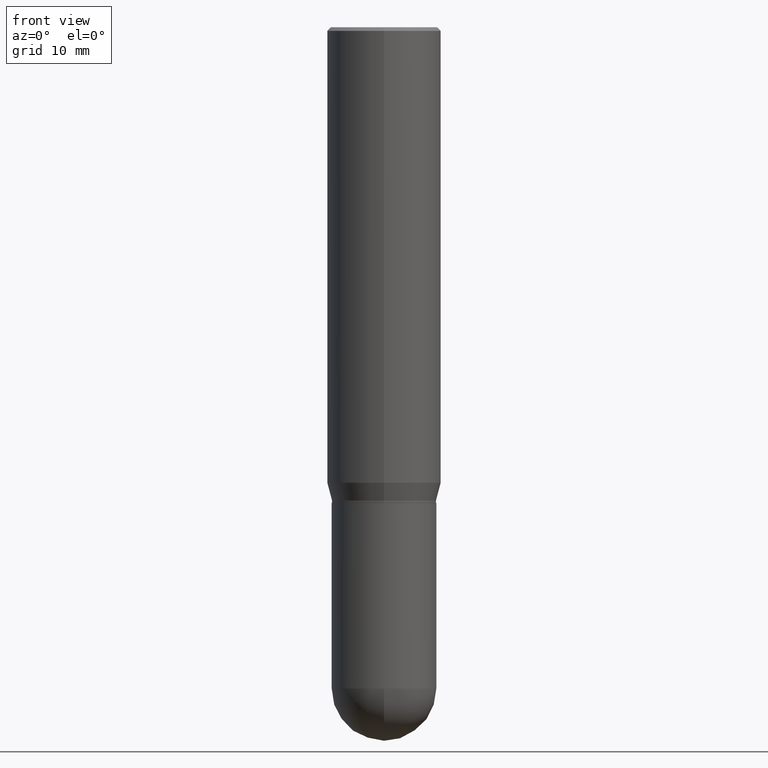
[diagram: clean part render]
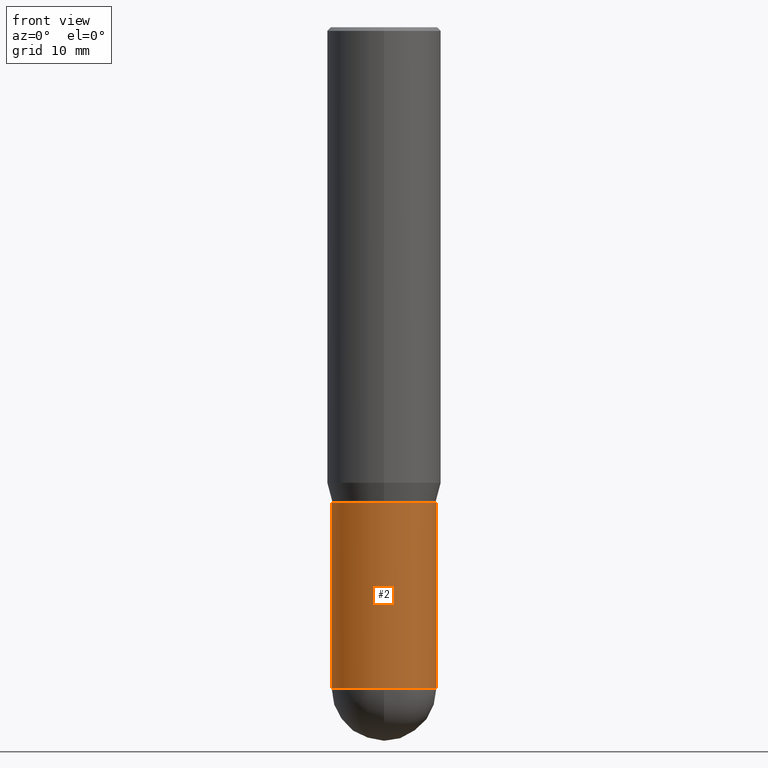
[diagram: same view with one face highlighted and labeled with its STEP entity id]
A machine part, front view. The second image highlights one B-rep face of the part: STEP entity #2.
In plain terms, the highlighted cylindrical surface (partial cylindrical patch) has radius 5.5004 mm, axis along (-0, 0, 1).
Its self-contained STEP definition (entity closure, byte-faithful):
#2 = ADVANCED_FACE ( 'NONE', ( #236 ), #439, .T. ) ;
#6 = DIRECTION ( 'NONE',  ( -2.445468806185136597E-29, 3.491481338843145583E-15, 1.000000000000000000 ) ) ;
#31 = VECTOR ( 'NONE', #456, 39.37007874015748143 ) ;
#32 = VERTEX_POINT ( 'NONE', #507 ) ;
#36 = CARTESIAN_POINT ( 'NONE',  ( 6.691414020924076964E-29, -9.553565813409554172E-15, -2.736249999999999183 ) ) ;
#37 = DIRECTION ( 'NONE',  ( -2.445468806185136597E-29, 3.491481338843145583E-15, 1.000000000000000000 ) ) ;
#45 = ORIENTED_EDGE ( 'NONE', *, *, #76, .T. ) ;
#54 = CARTESIAN_POINT ( 'NONE',  ( 0.2165500000000000480, -1.512160567852961414E-15, 1.055936080798610176E-29 ) ) ;
#57 = AXIS2_PLACEMENT_3D ( 'NONE', #487, #6, #96 ) ;
#76 = EDGE_CURVE ( 'NONE', #77, #239, #93, .T. ) ;
#77 = VERTEX_POINT ( 'NONE', #493 ) ;
#80 = VERTEX_POINT ( 'NONE', #99 ) ;
#83 = AXIS2_PLACEMENT_3D ( 'NONE', #36, #192, #185 ) ;
#85 = CIRCLE ( 'NONE', #57, 0.2165500000000000203 ) ;
#93 = LINE ( 'NONE', #54, #31 ) ;
#96 = DIRECTION ( 'NONE',  ( 1.000000000000000000, -6.982962677686264344E-15, 0.000000000000000000 ) ) ;
#99 = CARTESIAN_POINT ( 'NONE',  ( -0.2165500000000000203, -6.674593120172645055E-15, -1.968499999999999694 ) ) ;
#101 = AXIS2_PLACEMENT_3D ( 'NONE', #402, #37, #509 ) ;
#109 = AXIS2_PLACEMENT_3D ( 'NONE', #167, #134, #130 ) ;
#126 = LINE ( 'NONE', #136, #510 ) ;
#130 = DIRECTION ( 'NONE',  ( 1.000000000000000000, -6.982962677686263555E-15, 0.000000000000000000 ) ) ;
#133 = EDGE_CURVE ( 'NONE', #80, #239, #85, .T. ) ;
#134 = DIRECTION ( 'NONE',  ( -2.445468806185136597E-29, 3.491481338843145583E-15, 1.000000000000000000 ) ) ;
#136 = CARTESIAN_POINT ( 'NONE',  ( -0.2165500000000000480, 1.538680294288497294E-15, -1.065195393794700063E-29 ) ) ;
#167 = CARTESIAN_POINT ( 'NONE',  ( 6.691414020924076964E-29, -9.553565813409554172E-15, -2.736249999999999183 ) ) ;
#185 = DIRECTION ( 'NONE',  ( 1.000000000000000000, -6.982962677686263555E-15, 0.000000000000000000 ) ) ;
#192 = DIRECTION ( 'NONE',  ( -2.445468806185136597E-29, 3.491481338843145583E-15, 1.000000000000000000 ) ) ;
#202 = ORIENTED_EDGE ( 'NONE', *, *, #462, .T. ) ;
#236 = FACE_OUTER_BOUND ( 'NONE', #442, .T. ) ;
#239 = VERTEX_POINT ( 'NONE', #450 ) ;
#308 = CIRCLE ( 'NONE', #83, 0.2165500000000000480 ) ;
#325 = CARTESIAN_POINT ( 'NONE',  ( -1.538680294288430240E-15, -0.2165500000000096792, -2.736249999999998295 ) ) ;
#335 = EDGE_CURVE ( 'NONE', #505, #77, #413, .T. ) ;
#358 = EDGE_CURVE ( 'NONE', #32, #80, #126, .T. ) ;
#371 = ORIENTED_EDGE ( 'NONE', *, *, #335, .T. ) ;
#381 = DIRECTION ( 'NONE',  ( -2.445468806185136877E-29, 3.491481338843145188E-15, 1.000000000000000000 ) ) ;
#402 = CARTESIAN_POINT ( 'NONE',  ( 0.000000000000000000, 0.000000000000000000, 0.000000000000000000 ) ) ;
#413 = CIRCLE ( 'NONE', #109, 0.2165500000000000480 ) ;
#439 = CYLINDRICAL_SURFACE ( 'NONE', #101, 0.2165500000000000480 ) ;
#440 = ORIENTED_EDGE ( 'NONE', *, *, #133, .F. ) ;
#442 = EDGE_LOOP ( 'NONE', ( #460, #202, #371, #45, #440 ) ) ;
#450 = CARTESIAN_POINT ( 'NONE',  ( 0.2165500000000000203, -8.385141583365692530E-15, -1.968499999999999694 ) ) ;
#456 = DIRECTION ( 'NONE',  ( -2.445468806185136877E-29, 3.491481338843145188E-15, 1.000000000000000000 ) ) ;
#460 = ORIENTED_EDGE ( 'NONE', *, *, #358, .F. ) ;
#462 = EDGE_CURVE ( 'NONE', #32, #505, #308, .T. ) ;
#487 = CARTESIAN_POINT ( 'NONE',  ( 4.813905344975440714E-29, -6.872981015512730918E-15, -1.968499999999999694 ) ) ;
#493 = CARTESIAN_POINT ( 'NONE',  ( 0.2165500000000000480, -9.725433982314102974E-15, -2.736249999999999183 ) ) ;
#505 = VERTEX_POINT ( 'NONE', #325 ) ;
#507 = CARTESIAN_POINT ( 'NONE',  ( -0.2165500000000000480, -6.674593120172645055E-15, -2.736249999999999183 ) ) ;
#509 = DIRECTION ( 'NONE',  ( 1.000000000000000000, -6.982962677686266711E-15, 4.876176775795935793E-29 ) ) ;
#510 = VECTOR ( 'NONE', #381, 39.37007874015748143 ) ;